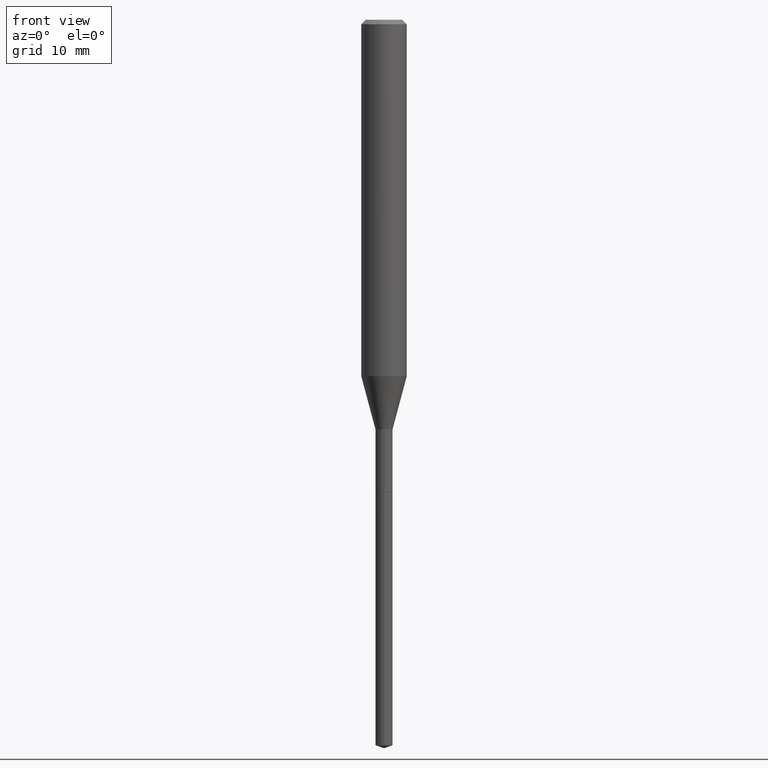
[diagram: clean part render]
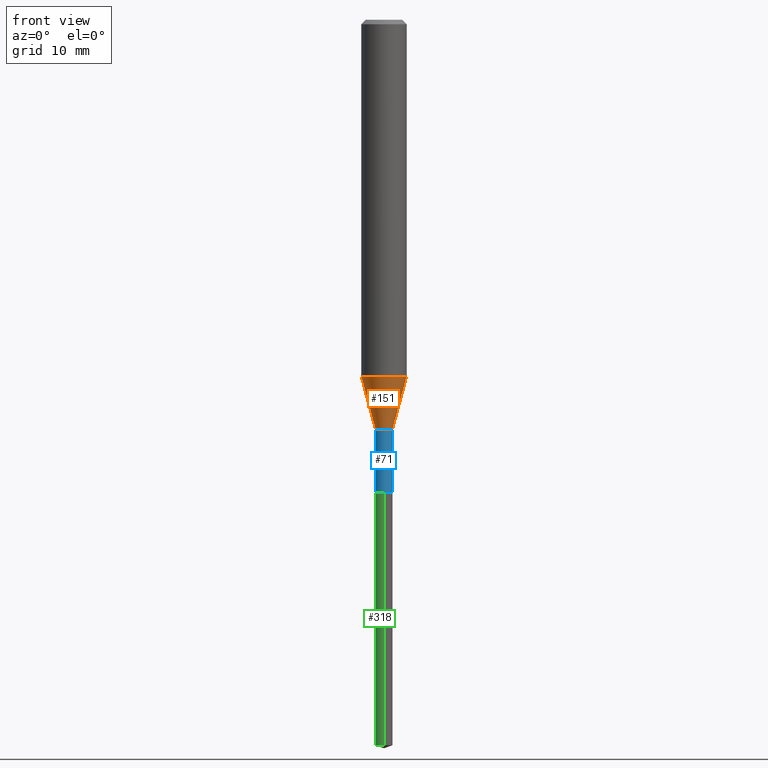
[diagram: same view with three faces highlighted in distinct colors, each labeled with its STEP entity id]
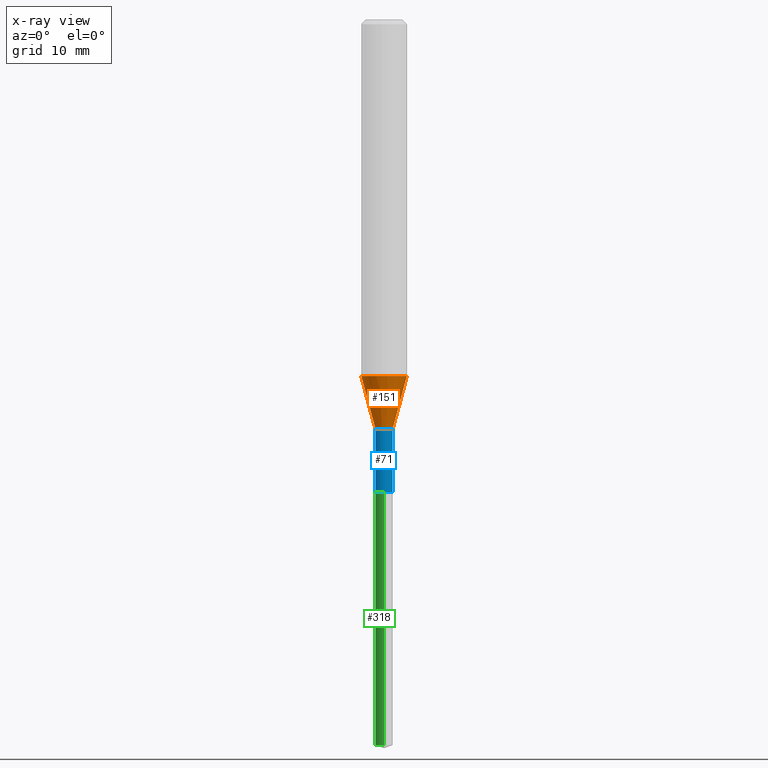
[diagram: x-ray of the same camera — body ghosted, the three highlighted faces saturated]
A machine part, front view with three faces highlighted in distinct colors.
The next image is the same camera in x-ray (body ghosted, the three faces saturated) — at least one of them is partly hidden behind the body in this view.
Their STEP definitions:

[orange] entity #151 — the highlighted conical surface has half-angle 15 deg.
#25 = LINE ( 'NONE', #290, #131 ) ;
#27 = DIRECTION ( 'NONE',  ( -2.445468806185136597E-29, 3.491481338843145583E-15, 1.000000000000000000 ) ) ;
#39 = CARTESIAN_POINT ( 'NONE',  ( 3.463517470200008716E-29, -4.944985020203546646E-15, -1.416299999999999892 ) ) ;
#64 = EDGE_CURVE ( 'NONE', #465, #228, #386, .T. ) ;
#69 = AXIS2_PLACEMENT_3D ( 'NONE', #254, #27, #391 ) ;
#76 = EDGE_LOOP ( 'NONE', ( #130, #379, #191, #161 ) ) ;
#92 = DIRECTION ( 'NONE',  ( -0.2588190451025212391, 5.211531920934549464E-15, 0.9659258262890679791 ) ) ;
#104 = CARTESIAN_POINT ( 'NONE',  ( 0.07875000000000015321, -4.853798352159471630E-15, -1.232683100267610854 ) ) ;
#130 = ORIENTED_EDGE ( 'NONE', *, *, #178, .F. ) ;
#131 = VECTOR ( 'NONE', #92, 39.37007874015748854 ) ;
#141 = CIRCLE ( 'NONE', #69, 0.07875000000000015321 ) ;
#148 = EDGE_CURVE ( 'NONE', #458, #309, #141, .T. ) ;
#151 = ADVANCED_FACE ( 'NONE', ( #355 ), #211, .T. ) ;
#161 = ORIENTED_EDGE ( 'NONE', *, *, #148, .F. ) ;
#173 = DIRECTION ( 'NONE',  ( 1.000000000000000000, -6.982962677686270655E-15, 0.000000000000000000 ) ) ;
#176 = CARTESIAN_POINT ( 'NONE',  ( 0.02954999999999996518, -5.151331567329175468E-15, -1.416299999999999892 ) ) ;
#178 = EDGE_CURVE ( 'NONE', #465, #458, #25, .T. ) ;
#191 = ORIENTED_EDGE ( 'NONE', *, *, #308, .T. ) ;
#211 = CONICAL_SURFACE ( 'NONE', #405, 0.02954999999999996518, 0.2617993877991499629 ) ;
#214 = CARTESIAN_POINT ( 'NONE',  ( 3.463517470200008716E-29, -4.944985020203546646E-15, -1.416299999999999892 ) ) ;
#228 = VERTEX_POINT ( 'NONE', #287 ) ;
#241 = DIRECTION ( 'NONE',  ( -2.445468806185136597E-29, 3.491481338843145583E-15, 1.000000000000000000 ) ) ;
#245 = VECTOR ( 'NONE', #445, 39.37007874015748854 ) ;
#252 = CARTESIAN_POINT ( 'NONE',  ( -0.02954999999999996518, -5.114019941117860308E-15, -1.416299999999999892 ) ) ;
#254 = CARTESIAN_POINT ( 'NONE',  ( 3.014488069616027069E-29, -4.303890041291677495E-15, -1.232683100267610854 ) ) ;
#287 = CARTESIAN_POINT ( 'NONE',  ( 0.02954999999999996518, -5.151331567329175468E-15, -1.416299999999999892 ) ) ;
#290 = CARTESIAN_POINT ( 'NONE',  ( -0.02954999999999996518, -4.735019641786437289E-15, -1.416299999999999892 ) ) ;
#308 = EDGE_CURVE ( 'NONE', #228, #309, #363, .T. ) ;
#309 = VERTEX_POINT ( 'NONE', #104 ) ;
#338 = DIRECTION ( 'NONE',  ( 1.000000000000000000, -6.982962677686270655E-15, 0.000000000000000000 ) ) ;
#355 = FACE_OUTER_BOUND ( 'NONE', #76, .T. ) ;
#363 = LINE ( 'NONE', #176, #245 ) ;
#377 = DIRECTION ( 'NONE',  ( -2.445468806185136597E-29, 3.491481338843145583E-15, 1.000000000000000000 ) ) ;
#379 = ORIENTED_EDGE ( 'NONE', *, *, #64, .T. ) ;
#384 = CARTESIAN_POINT ( 'NONE',  ( -0.07875000000000015321, -3.744337636880597116E-15, -1.232683100267610854 ) ) ;
#386 = CIRCLE ( 'NONE', #430, 0.02954999999999996518 ) ;
#391 = DIRECTION ( 'NONE',  ( 1.000000000000000000, -6.982962677686261189E-15, 0.000000000000000000 ) ) ;
#405 = AXIS2_PLACEMENT_3D ( 'NONE', #214, #241, #173 ) ;
#430 = AXIS2_PLACEMENT_3D ( 'NONE', #39, #377, #338 ) ;
#445 = DIRECTION ( 'NONE',  ( 0.2588190451025212391, 1.565188264969622362E-15, 0.9659258262890679791 ) ) ;
#458 = VERTEX_POINT ( 'NONE', #384 ) ;
#465 = VERTEX_POINT ( 'NONE', #252 ) ;

[blue] entity #71 — the highlighted cylindrical surface (edge-blend (fillet) strip) has radius 0.7506 mm, axis along (-0, 0, 1).
#13 = LINE ( 'NONE', #239, #357 ) ;
#17 = ORIENTED_EDGE ( 'NONE', *, *, #156, .T. ) ;
#31 = AXIS2_PLACEMENT_3D ( 'NONE', #468, #361, #134 ) ;
#39 = CARTESIAN_POINT ( 'NONE',  ( 3.463517470200008716E-29, -4.944985020203546646E-15, -1.416299999999999892 ) ) ;
#40 = DIRECTION ( 'NONE',  ( -2.445468806185136597E-29, 3.491481338843145583E-15, 1.000000000000000000 ) ) ;
#45 = EDGE_LOOP ( 'NONE', ( #229, #127, #17, #345 ) ) ;
#64 = EDGE_CURVE ( 'NONE', #465, #228, #386, .T. ) ;
#71 = ADVANCED_FACE ( 'NONE', ( #304 ), #113, .T. ) ;
#87 = VERTEX_POINT ( 'NONE', #323 ) ;
#88 = DIRECTION ( 'NONE',  ( -2.445468806185136877E-29, 3.491481338843145188E-15, 1.000000000000000000 ) ) ;
#110 = EDGE_CURVE ( 'NONE', #196, #87, #189, .T. ) ;
#113 = CYLINDRICAL_SURFACE ( 'NONE', #356, 0.02954999999999997906 ) ;
#127 = ORIENTED_EDGE ( 'NONE', *, *, #110, .T. ) ;
#129 = DIRECTION ( 'NONE',  ( -2.445468806185136877E-29, 3.491481338843145188E-15, 1.000000000000000000 ) ) ;
#134 = DIRECTION ( 'NONE',  ( 1.000000000000000000, -6.982962677686263555E-15, 0.000000000000000000 ) ) ;
#156 = EDGE_CURVE ( 'NONE', #87, #228, #277, .T. ) ;
#188 = DIRECTION ( 'NONE',  ( 1.000000000000000000, -6.982962677686266711E-15, 4.876176775795935793E-29 ) ) ;
#189 = CIRCLE ( 'NONE', #31, 0.02954999999999999294 ) ;
#196 = VERTEX_POINT ( 'NONE', #202 ) ;
#202 = CARTESIAN_POINT ( 'NONE',  ( -0.02954999999999999294, -5.114019941117860308E-15, -1.633399999999999741 ) ) ;
#228 = VERTEX_POINT ( 'NONE', #287 ) ;
#229 = ORIENTED_EDGE ( 'NONE', *, *, #451, .F. ) ;
#239 = CARTESIAN_POINT ( 'NONE',  ( -0.02954999999999997906, 2.099653784171094561E-16, -1.453545319170323675E-30 ) ) ;
#252 = CARTESIAN_POINT ( 'NONE',  ( -0.02954999999999996518, -5.114019941117860308E-15, -1.416299999999999892 ) ) ;
#268 = CARTESIAN_POINT ( 'NONE',  ( 0.000000000000000000, 0.000000000000000000, 0.000000000000000000 ) ) ;
#277 = LINE ( 'NONE', #427, #398 ) ;
#287 = CARTESIAN_POINT ( 'NONE',  ( 0.02954999999999996518, -5.151331567329175468E-15, -1.416299999999999892 ) ) ;
#304 = FACE_OUTER_BOUND ( 'NONE', #45, .T. ) ;
#323 = CARTESIAN_POINT ( 'NONE',  ( 0.02954999999999999294, -5.909332165992023083E-15, -1.633399999999999741 ) ) ;
#338 = DIRECTION ( 'NONE',  ( 1.000000000000000000, -6.982962677686270655E-15, 0.000000000000000000 ) ) ;
#345 = ORIENTED_EDGE ( 'NONE', *, *, #64, .F. ) ;
#356 = AXIS2_PLACEMENT_3D ( 'NONE', #268, #40, #188 ) ;
#357 = VECTOR ( 'NONE', #129, 39.37007874015748143 ) ;
#361 = DIRECTION ( 'NONE',  ( -2.445468806185136597E-29, 3.491481338843145583E-15, 1.000000000000000000 ) ) ;
#377 = DIRECTION ( 'NONE',  ( -2.445468806185136597E-29, 3.491481338843145583E-15, 1.000000000000000000 ) ) ;
#386 = CIRCLE ( 'NONE', #430, 0.02954999999999996518 ) ;
#398 = VECTOR ( 'NONE', #88, 39.37007874015748143 ) ;
#427 = CARTESIAN_POINT ( 'NONE',  ( 0.02954999999999997906, -2.063465471256290434E-16, 1.440910237247698019E-30 ) ) ;
#430 = AXIS2_PLACEMENT_3D ( 'NONE', #39, #377, #338 ) ;
#451 = EDGE_CURVE ( 'NONE', #196, #465, #13, .T. ) ;
#465 = VERTEX_POINT ( 'NONE', #252 ) ;
#468 = CARTESIAN_POINT ( 'NONE',  ( 3.994428748022801887E-29, -5.702985618866394262E-15, -1.633399999999999741 ) ) ;

[green] entity #318 — the highlighted cylindrical surface (edge-blend (fillet) strip) has radius 0.7506 mm, axis along (-0, 0, 1).
#4 = EDGE_LOOP ( 'NONE', ( #282, #421, #463, #6 ) ) ;
#6 = ORIENTED_EDGE ( 'NONE', *, *, #273, .F. ) ;
#8 = VERTEX_POINT ( 'NONE', #231 ) ;
#60 = EDGE_CURVE ( 'NONE', #240, #204, #198, .T. ) ;
#67 = CARTESIAN_POINT ( 'NONE',  ( 2.099653784171709626E-16, 0.02954999999999124646, -2.508944679577433501 ) ) ;
#74 = CIRCLE ( 'NONE', #346, 0.02954999999999999988 ) ;
#82 = VERTEX_POINT ( 'NONE', #114 ) ;
#96 = CARTESIAN_POINT ( 'NONE',  ( 2.099653784171495155E-16, 0.02954999999999429611, -1.633899999999999686 ) ) ;
#106 = EDGE_CURVE ( 'NONE', #204, #82, #325, .T. ) ;
#107 = DIRECTION ( 'NONE',  ( -2.444945154218927831E-29, 3.492231238263175322E-15, 1.000000000000000000 ) ) ;
#109 = CARTESIAN_POINT ( 'NONE',  ( 3.995651482425893567E-29, -5.704731359535814187E-15, -1.633899999999999686 ) ) ;
#114 = CARTESIAN_POINT ( 'NONE',  ( -2.063465471255892306E-16, -0.02955000000000570365, -1.633899999999999686 ) ) ;
#146 = AXIS2_PLACEMENT_3D ( 'NONE', #312, #376, #454 ) ;
#186 = DIRECTION ( 'NONE',  ( -6.982962677686265922E-15, -1.000000000000000000, 0.000000000000000000 ) ) ;
#198 = CIRCLE ( 'NONE', #146, 0.02954999999999999988 ) ;
#204 = VERTEX_POINT ( 'NONE', #431 ) ;
#206 = DIRECTION ( 'NONE',  ( -2.444945154218927831E-29, 3.492231238263175716E-15, 1.000000000000000000 ) ) ;
#231 = CARTESIAN_POINT ( 'NONE',  ( 2.099653784171710859E-16, 0.02954999999999429611, -1.633899999999999686 ) ) ;
#232 = VECTOR ( 'NONE', #206, 39.37007874015748143 ) ;
#240 = VERTEX_POINT ( 'NONE', #67 ) ;
#242 = VECTOR ( 'NONE', #321, 39.37007874015748143 ) ;
#246 = CARTESIAN_POINT ( 'NONE',  ( -2.063465471255892306E-16, -0.02955000000000570365, -1.633899999999999686 ) ) ;
#264 = DIRECTION ( 'NONE',  ( -2.444945154218927831E-29, 3.492231238263175322E-15, 1.000000000000000000 ) ) ;
#273 = EDGE_CURVE ( 'NONE', #8, #82, #74, .T. ) ;
#282 = ORIENTED_EDGE ( 'NONE', *, *, #475, .F. ) ;
#312 = CARTESIAN_POINT ( 'NONE',  ( 6.135087731483795032E-29, -8.760589724432118638E-15, -2.508944679577433501 ) ) ;
#318 = ADVANCED_FACE ( 'NONE', ( #484 ), #452, .T. ) ;
#321 = DIRECTION ( 'NONE',  ( -2.444945154218927831E-29, 3.492231238263175716E-15, 1.000000000000000000 ) ) ;
#325 = LINE ( 'NONE', #246, #242 ) ;
#339 = AXIS2_PLACEMENT_3D ( 'NONE', #109, #264, #412 ) ;
#346 = AXIS2_PLACEMENT_3D ( 'NONE', #367, #107, #186 ) ;
#367 = CARTESIAN_POINT ( 'NONE',  ( 3.995651482425893567E-29, -5.704731359535814187E-15, -1.633899999999999686 ) ) ;
#376 = DIRECTION ( 'NONE',  ( -2.444945154218927831E-29, 3.492231238263175322E-15, 1.000000000000000000 ) ) ;
#389 = LINE ( 'NONE', #96, #232 ) ;
#412 = DIRECTION ( 'NONE',  ( -6.982962677686265922E-15, -1.000000000000000000, 0.000000000000000000 ) ) ;
#421 = ORIENTED_EDGE ( 'NONE', *, *, #60, .T. ) ;
#431 = CARTESIAN_POINT ( 'NONE',  ( -2.063465471255678821E-16, -0.02955000000000876370, -2.508944679577433501 ) ) ;
#452 = CYLINDRICAL_SURFACE ( 'NONE', #339, 0.02954999999999999988 ) ;
#454 = DIRECTION ( 'NONE',  ( -6.982962677686265922E-15, -1.000000000000000000, 0.000000000000000000 ) ) ;
#463 = ORIENTED_EDGE ( 'NONE', *, *, #106, .T. ) ;
#475 = EDGE_CURVE ( 'NONE', #240, #8, #389, .T. ) ;
#484 = FACE_OUTER_BOUND ( 'NONE', #4, .T. ) ;